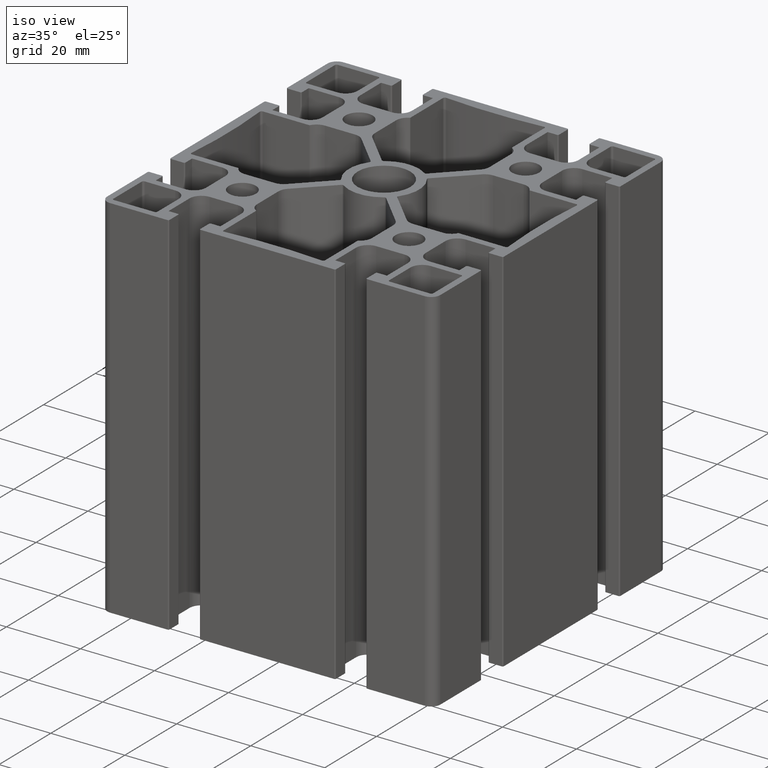
[diagram: clean part render]
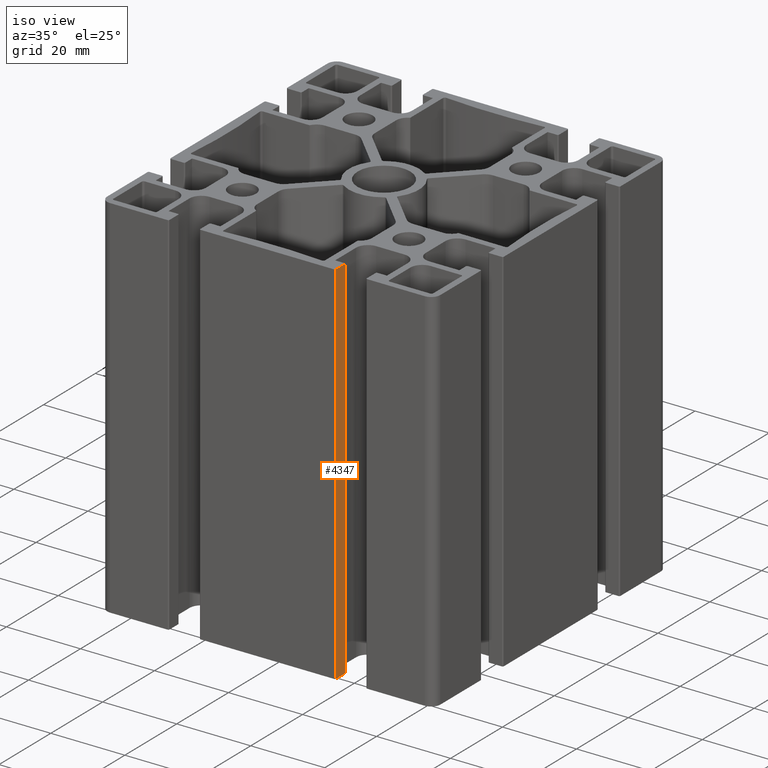
[diagram: same view with one face highlighted and labeled with its STEP entity id]
A machine part, iso view. The second image highlights one B-rep face of the part: STEP entity #4347.
In plain terms, the highlighted planar face has unit normal (1, 0, 0).
Its self-contained STEP definition (entity closure, byte-faithful):
#92=PLANE('',#4670);
#251=FACE_OUTER_BOUND('',#474,.T.);
#474=EDGE_LOOP('',(#3203,#3204,#3205,#3206));
#828=LINE('',#6854,#1260);
#829=LINE('',#6858,#1261);
#830=LINE('',#6860,#1262);
#831=LINE('',#6861,#1263);
#1260=VECTOR('',#5507,100.);
#1261=VECTOR('',#5512,3.4);
#1262=VECTOR('',#5513,100.);
#1263=VECTOR('',#5514,3.4);
#1929=VERTEX_POINT('',#6851);
#1930=VERTEX_POINT('',#6853);
#1931=VERTEX_POINT('',#6857);
#1932=VERTEX_POINT('',#6859);
#2457=EDGE_CURVE('',#1929,#1930,#828,.T.);
#2459=EDGE_CURVE('',#1929,#1931,#829,.T.);
#2460=EDGE_CURVE('',#1931,#1932,#830,.T.);
#2461=EDGE_CURVE('',#1930,#1932,#831,.T.);
#3203=ORIENTED_EDGE('',*,*,#2459,.T.);
#3204=ORIENTED_EDGE('',*,*,#2460,.T.);
#3205=ORIENTED_EDGE('',*,*,#2461,.F.);
#3206=ORIENTED_EDGE('',*,*,#2457,.F.);
#4347=ADVANCED_FACE('',(#251),#92,.T.);
#4670=AXIS2_PLACEMENT_3D('',#6856,#5510,#5511);
#5507=DIRECTION('',(0.,0.,-1.));
#5510=DIRECTION('center_axis',(1.,0.,0.));
#5511=DIRECTION('ref_axis',(0.,1.,0.));
#5512=DIRECTION('',(0.,-1.,0.));
#5513=DIRECTION('',(0.,0.,-1.));
#5514=DIRECTION('',(0.,-1.,0.));
#6851=CARTESIAN_POINT('',(18.35,-41.3,100.));
#6853=CARTESIAN_POINT('',(18.35,-41.3,0.));
#6854=CARTESIAN_POINT('',(18.35,-41.3,0.));
#6856=CARTESIAN_POINT('Origin',(18.35,-44.7,0.));
#6857=CARTESIAN_POINT('',(18.35,-44.7,100.));
#6858=CARTESIAN_POINT('',(18.35,-22.35,100.));
#6859=CARTESIAN_POINT('',(18.35,-44.7,0.));
#6860=CARTESIAN_POINT('',(18.35,-44.7,0.));
#6861=CARTESIAN_POINT('',(18.35,-22.35,0.));